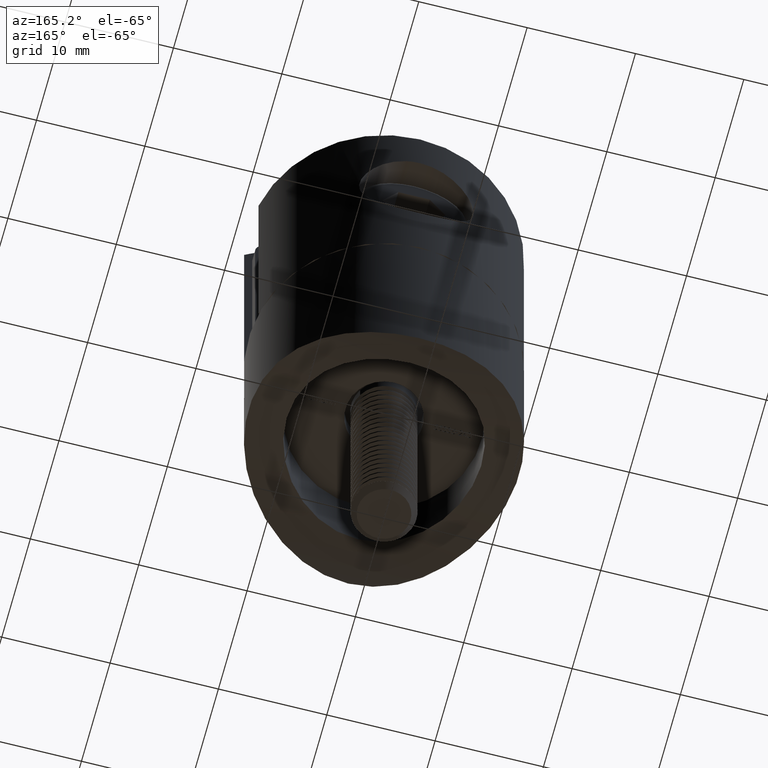
[diagram: clean part render]
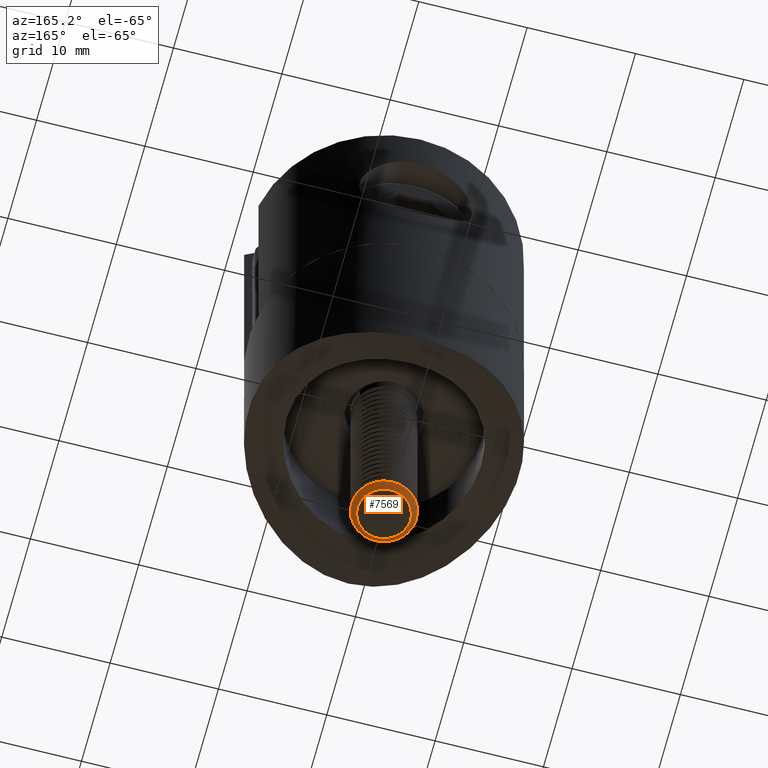
[diagram: same view with one face highlighted and labeled with its STEP entity id]
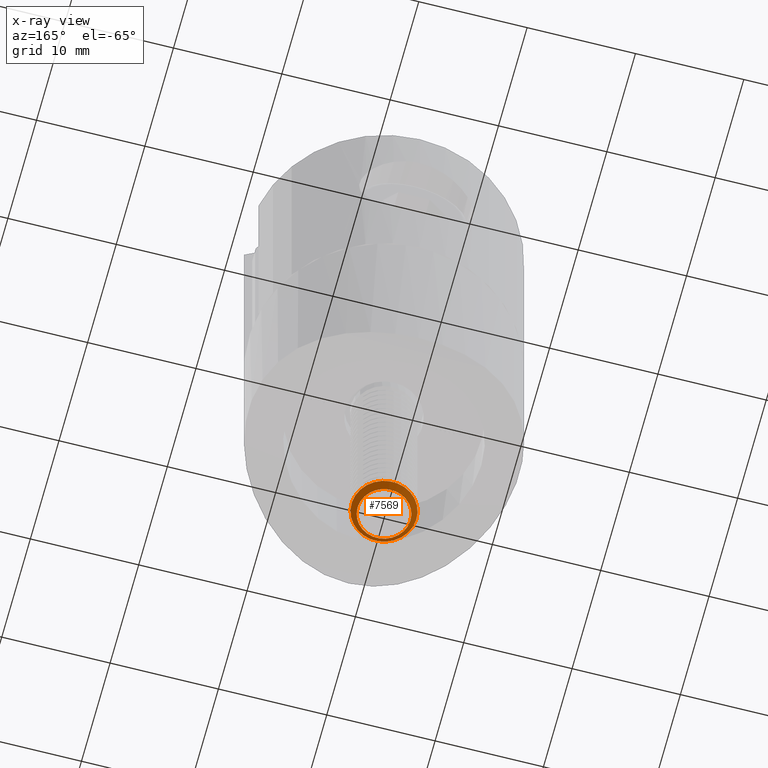
[diagram: x-ray of the same camera — body ghosted, the highlighted face saturated]
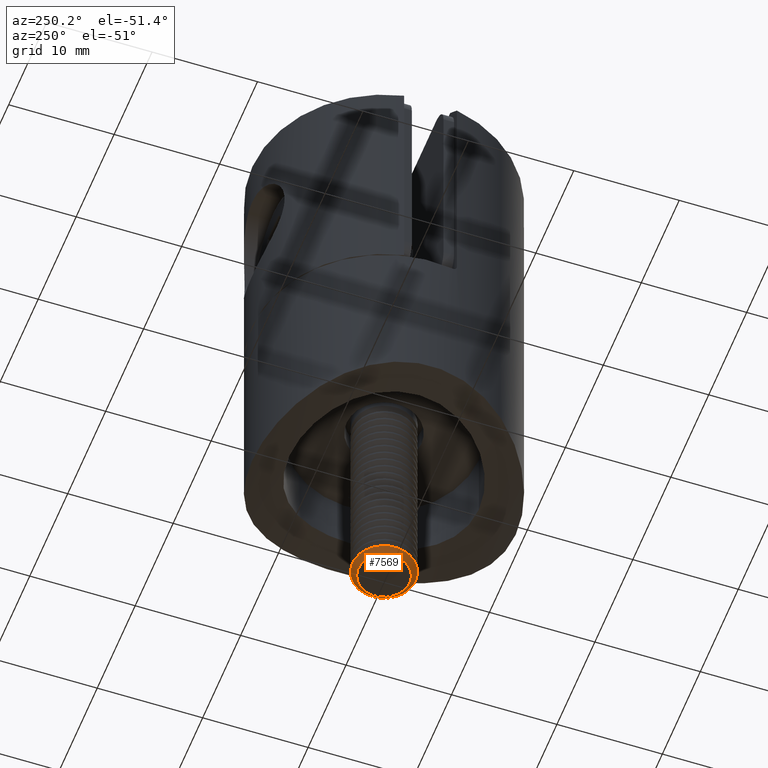
[diagram: same view with one face highlighted and labeled with its STEP entity id]
A machine part, auxiliary view. The second image highlights one B-rep face of the part: STEP entity #7569.
The next image is the same camera in x-ray: the body ghosted, the highlighted face saturated — about 0% of this face is hidden behind the body in this view.
A second angle (auxiliary view) of the same face is appended — the face is thin or edge-on in the first view.
In plain terms, the highlighted conical surface has half-angle 45 deg.
Its self-contained STEP definition (entity closure, byte-faithful):
#504 = AXIS2_PLACEMENT_3D ( 'NONE', #17509, #1565, #10290 ) ;
#980 = CARTESIAN_POINT ( 'NONE',  ( 25.00000000000000000, 0.000000000000000000, 0.000000000000000000 ) ) ;
#1326 = DIRECTION ( 'NONE',  ( -1.000000000000000000, -0.000000000000000000, -0.000000000000000000 ) ) ;
#1565 = DIRECTION ( 'NONE',  ( -1.000000000000000000, -0.000000000000000000, -0.000000000000000000 ) ) ;
#2775 = AXIS2_PLACEMENT_3D ( 'NONE', #6874, #1326, #21123 ) ;
#6874 = CARTESIAN_POINT ( 'NONE',  ( 25.00000000000000000, 0.000000000000000000, 0.000000000000000000 ) ) ;
#7569 = ADVANCED_FACE ( 'NONE', ( #12036, #13429 ), #21220, .T. ) ;
#9894 = AXIS2_PLACEMENT_3D ( 'NONE', #980, #20612, #13461 ) ;
#10290 = DIRECTION ( 'NONE',  ( 0.000000000000000000, 0.000000000000000000, 1.000000000000000000 ) ) ;
#11662 = VERTEX_POINT ( 'NONE', #20898 ) ;
#11826 = ORIENTED_EDGE ( 'NONE', *, *, #20626, .F. ) ;
#11829 = EDGE_LOOP ( 'NONE', ( #11826 ) ) ;
#12036 = FACE_OUTER_BOUND ( 'NONE', #11829, .T. ) ;
#13429 = FACE_BOUND ( 'NONE', #17177, .T. ) ;
#13461 = DIRECTION ( 'NONE',  ( 0.000000000000000000, 0.000000000000000000, 1.000000000000000000 ) ) ;
#15783 = VERTEX_POINT ( 'NONE', #22743 ) ;
#17177 = EDGE_LOOP ( 'NONE', ( #22319 ) ) ;
#17509 = CARTESIAN_POINT ( 'NONE',  ( 24.44550000000002044, 0.000000000000000000, 0.000000000000000000 ) ) ;
#18180 = EDGE_CURVE ( 'NONE', #11662, #11662, #19056, .T. ) ;
#19056 = CIRCLE ( 'NONE', #9894, 2.445500000000000007 ) ;
#20612 = DIRECTION ( 'NONE',  ( -1.000000000000000000, -0.000000000000000000, -0.000000000000000000 ) ) ;
#20626 = EDGE_CURVE ( 'NONE', #15783, #15783, #21561, .T. ) ;
#20898 = CARTESIAN_POINT ( 'NONE',  ( 25.00000000000000000, 0.000000000000000000, 2.445500000000000007 ) ) ;
#21123 = DIRECTION ( 'NONE',  ( 0.000000000000000000, 0.000000000000000000, 1.000000000000000000 ) ) ;
#21220 = CONICAL_SURFACE ( 'NONE', #2775, 2.445500000000000007, 0.7853981633974651544 ) ;
#21561 = CIRCLE ( 'NONE', #504, 3.000000000000000888 ) ;
#22319 = ORIENTED_EDGE ( 'NONE', *, *, #18180, .T. ) ;
#22743 = CARTESIAN_POINT ( 'NONE',  ( 24.44550000000002044, 0.000000000000000000, 3.000000000000000888 ) ) ;